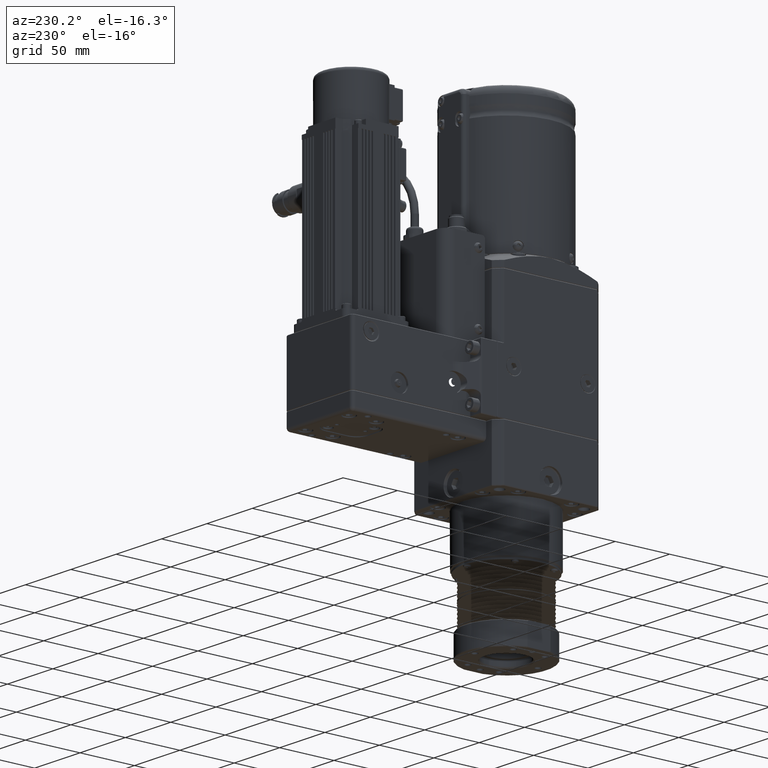
[diagram: clean part render]
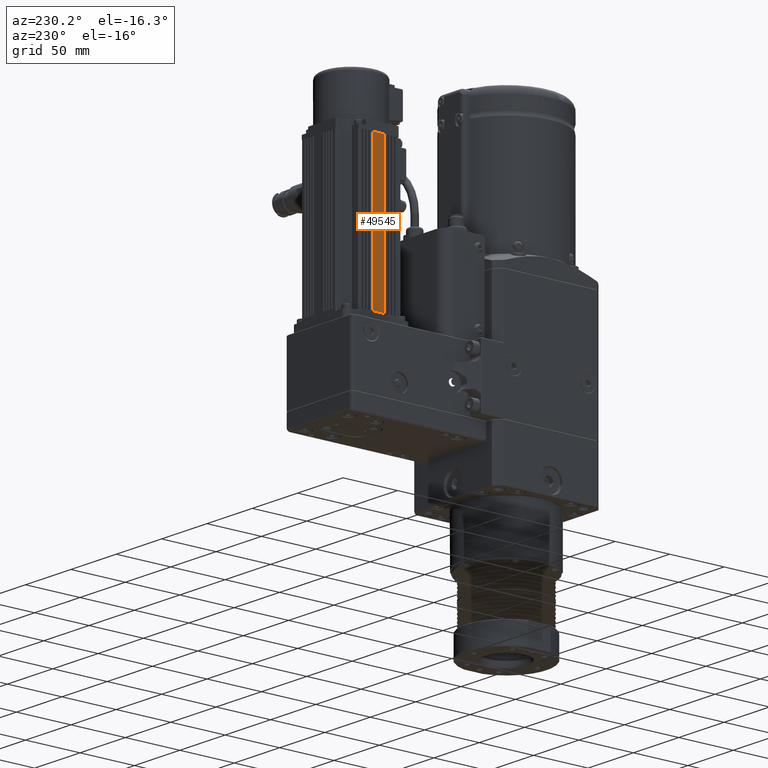
[diagram: same view with one face highlighted and labeled with its STEP entity id]
A machine part, auxiliary view. The second image highlights one B-rep face of the part: STEP entity #49545.
In plain terms, the highlighted planar face has unit normal (-1, -0, 0).
Its self-contained STEP definition (entity closure, byte-faithful):
#3171=FACE_OUTER_BOUND('',#6136,.T.);
#6136=EDGE_LOOP('',(#34498,#34499,#34500,#34501));
#9651=LINE('',#74371,#13873);
#9799=LINE('',#74707,#14021);
#9803=LINE('',#74717,#14025);
#9804=LINE('',#74718,#14026);
#13873=VECTOR('',#59323,10.);
#14021=VECTOR('',#59681,10.);
#14025=VECTOR('',#59693,10.);
#14026=VECTOR('',#59694,10.);
#20391=VERTEX_POINT('',#73837);
#20398=VERTEX_POINT('',#73854);
#20637=VERTEX_POINT('',#74704);
#20640=VERTEX_POINT('',#74716);
#25837=EDGE_CURVE('',#20391,#20398,#9651,.T.);
#26011=EDGE_CURVE('',#20391,#20637,#9799,.T.);
#26016=EDGE_CURVE('',#20637,#20640,#9803,.T.);
#26017=EDGE_CURVE('',#20640,#20398,#9804,.T.);
#34498=ORIENTED_EDGE('',*,*,#26011,.T.);
#34499=ORIENTED_EDGE('',*,*,#26016,.T.);
#34500=ORIENTED_EDGE('',*,*,#26017,.T.);
#34501=ORIENTED_EDGE('',*,*,#25837,.F.);
#47664=PLANE('',#52938);
#49545=ADVANCED_FACE('',(#3171),#47664,.T.);
#52938=AXIS2_PLACEMENT_3D('',#74715,#59691,#59692);
#59323=DIRECTION('',(5.49402263057062E-16,-1.,-1.81782792147336E-15));
#59681=DIRECTION('',(-6.16447338603729E-16,1.81782792147336E-15,-1.));
#59691=DIRECTION('center_axis',(-1.,-5.49402263057064E-16,6.16447338603728E-16));
#59692=DIRECTION('ref_axis',(5.49402263057062E-16,-1.,-1.81782792147336E-15));
#59693=DIRECTION('',(3.63482562059951E-16,-1.,-1.81782792147336E-15));
#59694=DIRECTION('',(6.16447338603729E-16,-1.81782792147336E-15,1.));
#73837=CARTESIAN_POINT('',(-29.9999999999994,147.499999999999,290.));
#73854=CARTESIAN_POINT('',(-29.9999999999994,137.499999999999,290.));
#74371=CARTESIAN_POINT('',(-29.9999999999994,160.999999999999,290.));
#74704=CARTESIAN_POINT('',(-29.9999999999995,147.5,158.));
#74707=CARTESIAN_POINT('',(-29.9999999999994,147.5,224.));
#74715=CARTESIAN_POINT('Origin',(-29.9999999999995,161.,158.));
#74716=CARTESIAN_POINT('',(-29.9999999999995,137.5,158.));
#74717=CARTESIAN_POINT('',(-29.9999999999995,117.,158.));
#74718=CARTESIAN_POINT('',(-29.9999999999994,137.5,224.));